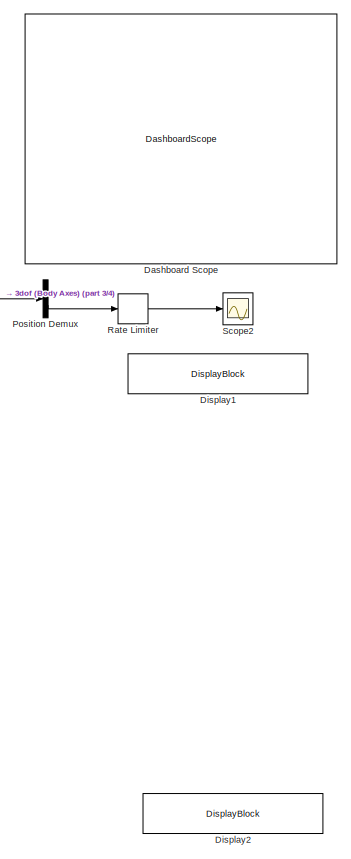
[diagram: root canvas - part 1/4, top right region]
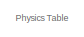
[diagram: root canvas - part 2/4, top left region]
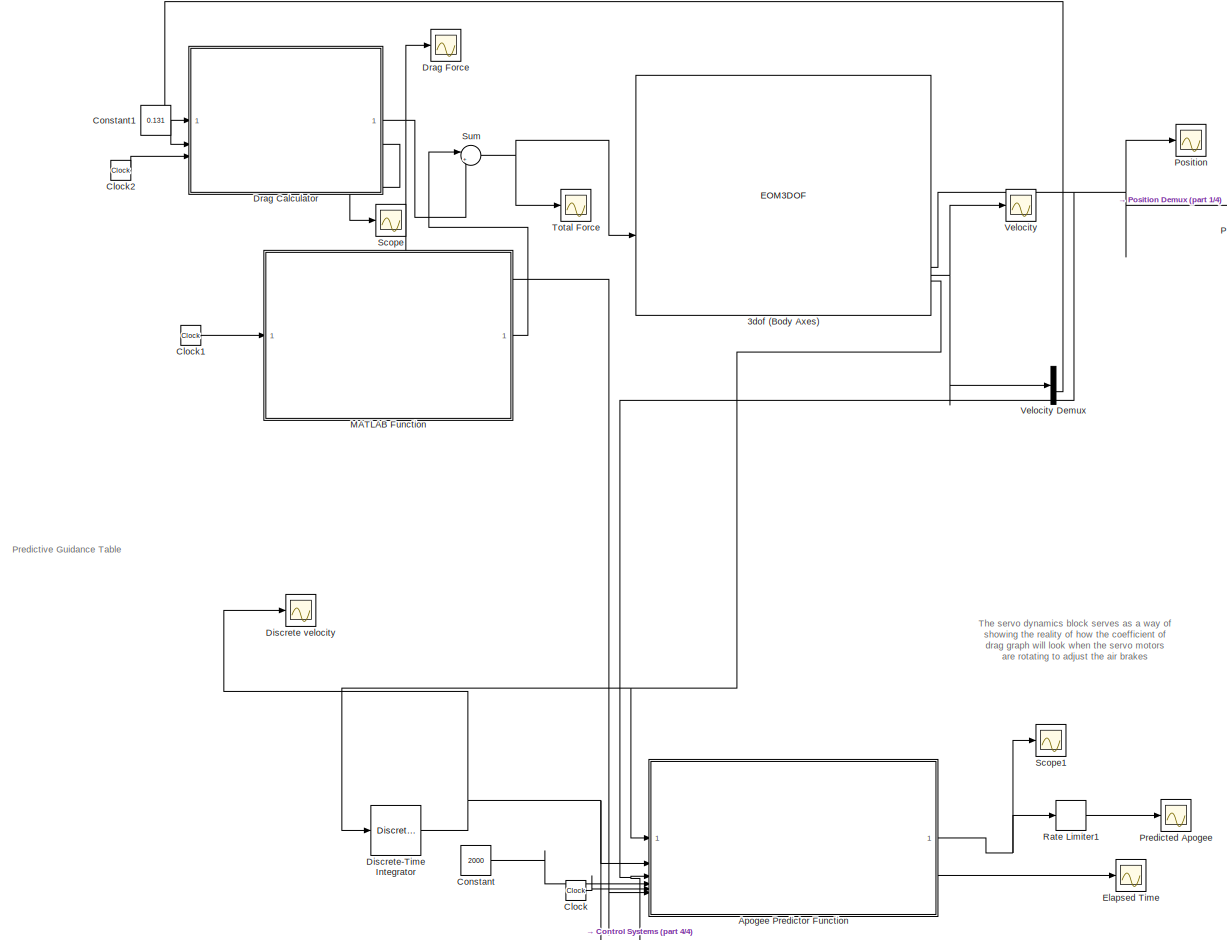
[diagram: root canvas - part 3/4, full width, middle band]
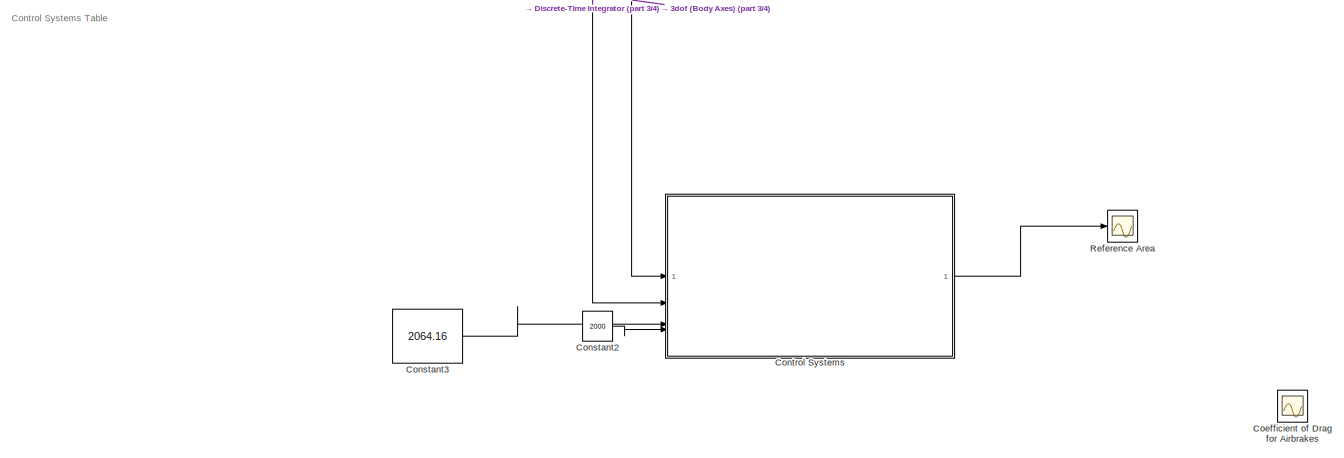
[diagram: root canvas - part 4/4, full width, bottom band]
MODEL slx_b58cb92ddd48
KIND model
CONFIG AbsTol = auto
CONFIG EnableMultiTasking = off
CONFIG FixedStep = 0.001
CONFIG MaxStep = auto
CONFIG MinStep = auto
CONFIG RelTol = 1e-3
CONFIG SampleTimeConstraint = Unconstrained
CONFIG SolverName = FixedStepAuto
CONFIG StartTime = 0.0
CONFIG StopTime = 57
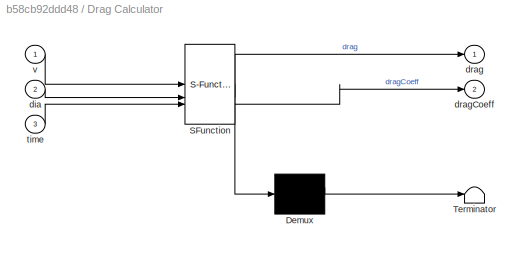
BLOCK [SubSystem]  Drag Calculator
  ErrorFcn = Stateflow.Translate.translate
  PermitHierarchicalResolution = ExplicitOnly
  SFBlockType = MATLAB Function
  TreatAsAtomicUnit = on
BLOCK [Demux]  Drag Calculator/ Demux 
  Outputs = 1
BLOCK [S-Function]  Drag Calculator/ SFunction 
  EnableBusSupport = off
  FunctionName = sf_sfun
  PortCounts = [3 3]
  SFcnIsStateOwnerBlock = off
  SFunctionDeploymentMode = off
  Tag = Stateflow S-Function 2
BLOCK [Terminator]  Drag Calculator/ Terminator 
BLOCK [Inport]  Drag Calculator/dia
  Port = 2
BLOCK [Outport]  Drag Calculator/drag
BLOCK [Outport]  Drag Calculator/dragCoeff
  Port = 2
BLOCK [Inport]  Drag Calculator/time
  Port = 3
BLOCK [Inport]  Drag Calculator/v
BLOCK [EOM3DOF] 3dof (Body Axes)
  g = -9.81
  mass = 13.576
  v_ini = 0
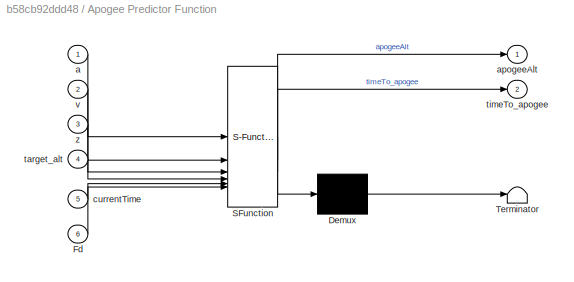
BLOCK [SubSystem] Apogee Predictor Function 
  ErrorFcn = Stateflow.Translate.translate
  PermitHierarchicalResolution = ExplicitOnly
  SFBlockType = MATLAB Function
  TreatAsAtomicUnit = on
BLOCK [Demux] Apogee Predictor Function / Demux 
  Outputs = 1
BLOCK [S-Function] Apogee Predictor Function / SFunction 
  EnableBusSupport = off
  FunctionName = sf_sfun
  PortCounts = [6 3]
  SFcnIsStateOwnerBlock = off
  SFunctionDeploymentMode = off
  Tag = Stateflow S-Function 1
BLOCK [Terminator] Apogee Predictor Function / Terminator 
BLOCK [Inport] Apogee Predictor Function /Fd
  Port = 6
BLOCK [Inport] Apogee Predictor Function /a
BLOCK [Outport] Apogee Predictor Function /apogeeAlt
BLOCK [Inport] Apogee Predictor Function /currentTime
  Port = 5
BLOCK [Inport] Apogee Predictor Function /target_alt
  Port = 4
BLOCK [Outport] Apogee Predictor Function /timeTo_apogee
  Port = 2
BLOCK [Inport] Apogee Predictor Function /v
  Port = 2
BLOCK [Inport] Apogee Predictor Function /z
  Port = 3
BLOCK [Clock] Clock
  DisplayTime = on
BLOCK [Clock] Clock1
BLOCK [Clock] Clock2
BLOCK [Scope] Coefficient of Drag for Airbrakes
  ActiveDisplayYMaximum = 1
  ActiveDisplayYMinimum = -1
  DataLoggingVariableName = ScopeData7
  Floating = off
  GraphicalSettings = {"Style":{"BackgroundColor":[0.12941176470588237,0.12941176470588237,0.12941176470588237],"AxesColor":[0.07058823529411765,0.07058823529411765,0.07058823529411765],"LabelsColor":[0.8509803921568627,0.8509803921568627,0.8509803921568627],"PreserveColors":false,"Visible":[true],"LineStyle":["-"],"LineWidth":[1.5],"BarWidth":[0.9],"LineColor":["auto"],"LineFaceAlpha":[1],"LineEdgeAlpha":[1],"Marker":...<+2006ch>
  MultipleDisplayCache = [{"MaxYLimMag":1,"MaxYLimReal":1,"MinYLimMag":0,"MinYLimReal":-1,"PlotAsMagnitudePhase":false,"ShowGrid":true,"ShowLegend":false,"Title":"%<SignalLabel>","YLabel":""}]
  NumInputPorts = 1
  ScopeFrameLocation = window
  WasSavedAsWebScope = on
  WindowPosition = [769.000000,356.000000,560.000000,420.000000,]
BLOCK [Constant] Constant
  Value = 2000
BLOCK [Constant] Constant1
  Value = 0.131
BLOCK [Constant] Constant2
  Value = 2000
BLOCK [Constant] Constant3
  Value = 2064.16
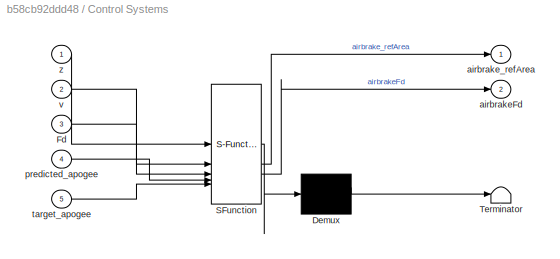
BLOCK [SubSystem] Control Systems
  ErrorFcn = Stateflow.Translate.translate
  PermitHierarchicalResolution = ExplicitOnly
  SFBlockType = MATLAB Function
  TreatAsAtomicUnit = on
BLOCK [Demux] Control Systems/ Demux 
  Outputs = 1
BLOCK [S-Function] Control Systems/ SFunction 
  EnableBusSupport = off
  FunctionName = sf_sfun
  PortCounts = [5 3]
  SFcnIsStateOwnerBlock = off
  SFunctionDeploymentMode = off
  Tag = Stateflow S-Function 4
BLOCK [Terminator] Control Systems/ Terminator 
BLOCK [Inport] Control Systems/Fd
  Port = 3
BLOCK [Outport] Control Systems/airbrakeFd
  Port = 2
BLOCK [Outport] Control Systems/airbrake_refArea
BLOCK [Inport] Control Systems/predicted_apogee
  Port = 4
BLOCK [Inport] Control Systems/target_apogee
  Port = 5
BLOCK [Inport] Control Systems/v
  Port = 2
BLOCK [Inport] Control Systems/z
BLOCK [DashboardScope] Dashboard Scope
BLOCK [Scope] Discrete velocity
  ActiveDisplayYMaximum = 312.46696240331539
  ActiveDisplayYMinimum = 291.97809991051849
  DataLoggingVariableName = ScopeData8
  Floating = off
  GraphicalSettings = {"AxesScalingProperties":{"AlignXAxis":"Center","AlignYAxis":"Center","AutoScaleXAxisLimits":false,"AxesScaling":"Manual","AxesScalingNumUpdates":10,"ExpandOnly":true,"ScaleAxesLimitsAtStop":false,"XAxisDataRange":100,"YAxisDataRange":80},"DisplayProperties":{"ColorOrder":["auto","auto","auto","auto","auto","auto","auto","auto","auto","auto","auto","auto","auto","auto","auto","auto","auto","auto",...<+2161ch>
  MultipleDisplayCache = [{"MaxYLimMag":1,"MaxYLimReal":312.46696240331539,"MinYLimMag":0,"MinYLimReal":291.97809991051849,"PlotAsMagnitudePhase":false,"ShowGrid":true,"ShowLegend":false,"Title":"%<SignalLabel>","YLabel":""}]
  NumInputPorts = 1
  ScopeFrameLocation = window
  WasSavedAsWebScope = on
  WindowPosition = [476.000000,281.000000,560.000000,420.000000,]
BLOCK [DiscreteIntegrator] Discrete-Time Integrator
  ICPrevOutput = DiscIntNeverNeededParam
  ICPrevScaledInput = DiscIntNeverNeededParam
  InitialConditionSetting = Auto
  IntegratorMethod = Integration: Backward Euler
  SampleTime = -1
BLOCK [DisplayBlock] Display1
  Format = bank
  GridColor = [0.502, 0.502, 0.502]
  LabelPosition = Hide
  Transparency = 1
BLOCK [DisplayBlock] Display2
  Format = bank
  GridColor = [0.502, 0.502, 0.502]
  LabelPosition = Hide
  Transparency = 1
BLOCK [Scope] Drag Force
  ActiveDisplayYMaximum = 1
  ActiveDisplayYMinimum = -1
  DataLoggingVariableName = ScopeData3
  Floating = off
  GraphicalSettings = {"Style":{"BackgroundColor":[0.12941176470588237,0.12941176470588237,0.12941176470588237],"AxesColor":[0.07058823529411765,0.07058823529411765,0.07058823529411765],"LabelsColor":[0.8509803921568627,0.8509803921568627,0.8509803921568627],"PreserveColors":false,"Visible":[true],"LineStyle":["-"],"LineWidth":[1.5],"BarWidth":[0.9],"LineColor":["auto"],"LineFaceAlpha":[1],"LineEdgeAlpha":[1],"Marker":...<+1924ch>
  MultipleDisplayCache = [{"MaxYLimMag":1,"MaxYLimReal":1,"MinYLimMag":0,"MinYLimReal":-1,"PlotAsMagnitudePhase":false,"ShowGrid":true,"ShowLegend":false,"Title":"%<SignalLabel>","YLabel":""}]
  NumInputPorts = 1
  ScopeFrameLocation = window
  WasSavedAsWebScope = on
  WindowPosition = [476.000000,281.000000,560.000000,420.000000,]
BLOCK [Scope] Elapsed Time
  ActiveDisplayYMaximum = 13.087344302359135
  ActiveDisplayYMinimum = 4.5521033385037128
  DataLoggingVariableName = ScopeData6
  Floating = off
  GraphicalSettings = {"AxesScalingProperties":{"AlignXAxis":"Center","AlignYAxis":"Center","AutoScaleXAxisLimits":false,"AxesScaling":"Manual","AxesScalingNumUpdates":10,"ExpandOnly":true,"ScaleAxesLimitsAtStop":false,"XAxisDataRange":100,"YAxisDataRange":80},"DisplayProperties":{"ColorOrder":["auto","auto","auto","auto","auto","auto","auto","auto","auto","auto","auto","auto","auto","auto","auto","auto","auto","auto",...<+1978ch>
  MultipleDisplayCache = [{"MaxYLimMag":21.657500000000002,"MaxYLimReal":13.087344302359135,"MinYLimMag":5.1824999999999948,"MinYLimReal":4.5521033385037128,"PlotAsMagnitudePhase":false,"ShowGrid":true,"ShowLegend":false,"Title":"%<SignalLabel>","YLabel":""}]
  NumInputPorts = 1
  ScopeFrameLocation = window
  WasSavedAsWebScope = on
  WindowPosition = [432.000000,281.000000,604.000000,420.000000,]
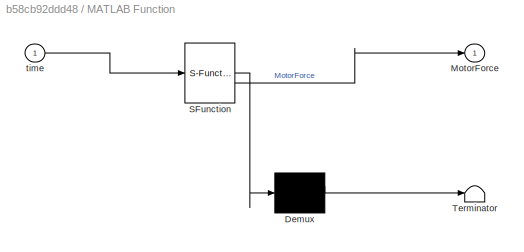
BLOCK [SubSystem] MATLAB Function
  ErrorFcn = Stateflow.Translate.translate
  PermitHierarchicalResolution = ExplicitOnly
  SFBlockType = MATLAB Function
  TreatAsAtomicUnit = on
BLOCK [Demux] MATLAB Function/ Demux 
  Outputs = 1
BLOCK [S-Function] MATLAB Function/ SFunction 
  EnableBusSupport = off
  FunctionName = sf_sfun
  PortCounts = [1 2]
  SFcnIsStateOwnerBlock = off
  SFunctionDeploymentMode = off
  Tag = Stateflow S-Function 3
BLOCK [Terminator] MATLAB Function/ Terminator 
BLOCK [Outport] MATLAB Function/MotorForce
BLOCK [Inport] MATLAB Function/time
BLOCK [Scope] Position
  ActiveDisplayYMaximum = 2260.8480304749323
  ActiveDisplayYMinimum = -251.20533671943687
  DataLoggingVariableName = ScopeData1
  Floating = off
  GraphicalSettings = {"Style":{"BackgroundColor":[0.12941176470588237,0.12941176470588237,0.12941176470588237],"AxesColor":[0.07058823529411765,0.07058823529411765,0.07058823529411765],"LabelsColor":[0.8509803921568627,0.8509803921568627,0.8509803921568627],"PreserveColors":false,"Visible":[true,true],"LineStyle":["-","-"],"LineWidth":[1.5,1.5],"BarWidth":[0.9,0.9],"LineColor":["auto","auto"],"LineFaceAlpha":[1,1],"Li...<+2166ch>
  MultipleDisplayCache = [{"MaxYLimMag":2260.8480304749323,"MaxYLimReal":2260.8480304749323,"MinYLimMag":0,"MinYLimReal":-251.20533671943687,"PlotAsMagnitudePhase":false,"ShowGrid":true,"ShowLegend":false,"Title":"%<SignalLabel>","YLabel":""}]
  NumInputPorts = 1
  ScopeFrameLocation = window
  WasSavedAsWebScope = on
  WindowPosition = [417.000000,268.000000,755.000000,347.000000,]
BLOCK [Demux] Position Demux
  Outputs = 2
BLOCK [Scope] Predicted Apogee 
  ActiveDisplayYMaximum = 2292.7929489685152
  ActiveDisplayYMinimum = -254.84305290405223
  DataLoggingVariableName = ScopeData9
  Floating = off
  GraphicalSettings = {"Style":{"BackgroundColor":[0.12941176470588237,0.12941176470588237,0.12941176470588237],"AxesColor":[0.07058823529411765,0.07058823529411765,0.07058823529411765],"LabelsColor":[0.8509803921568627,0.8509803921568627,0.8509803921568627],"PreserveColors":false,"Visible":[true],"LineStyle":["-"],"LineWidth":[1.5],"BarWidth":[0.9],"LineColor":["auto"],"LineFaceAlpha":[1],"LineEdgeAlpha":[1],"Marker":...<+2137ch>
  MultipleDisplayCache = [{"MaxYLimMag":2292.7929489685152,"MaxYLimReal":2292.7929489685152,"MinYLimMag":0,"MinYLimReal":-254.84305290405223,"PlotAsMagnitudePhase":false,"ShowGrid":true,"ShowLegend":false,"Title":"%<SignalLabel>","YLabel":""}]
  NumInputPorts = 1
  ScopeFrameLocation = container
  WasSavedAsWebScope = on
  WindowPosition = [152.000000,74.000000,1280.000000,768.000000,]
BLOCK [RateLimiter] Rate Limiter
  FallingSlewLimit = 0
  RisingSlewLimit = 9999999999
  SampleTimeMode = inherited
BLOCK [RateLimiter] Rate Limiter1
  FallingSlewLimit = 0
  RisingSlewLimit = 999999999
  SampleTimeMode = inherited
BLOCK [Scope] Reference Area
  ActiveDisplayYMaximum = 0.5298853579545455
  ActiveDisplayYMinimum = -0.095738392045454535
  ContainerLayout = {"WindowBounds":[116,107,1280,768]}
  DataLoggingVariableName = ScopeData11
  Floating = off
  GraphicalSettings = {"Style":{"BackgroundColor":[0.12941176470588237,0.12941176470588237,0.12941176470588237],"AxesColor":[0.07058823529411765,0.07058823529411765,0.07058823529411765],"LabelsColor":[0.8509803921568627,0.8509803921568627,0.8509803921568627],"PreserveColors":false,"Visible":[true],"LineStyle":["-"],"LineWidth":[1.5],"BarWidth":[0.9],"LineColor":["auto"],"LineFaceAlpha":[1],"LineEdgeAlpha":[1],"Marker":...<+2037ch>
  MultipleDisplayCache = [{"MaxYLimMag":0.563062375,"MaxYLimReal":0.5298853579545455,"MinYLimMag":0,"MinYLimReal":-0.095738392045454535,"PlotAsMagnitudePhase":false,"ShowGrid":true,"ShowLegend":false,"Title":"%<SignalLabel>","YLabel":""}]
  NumInputPorts = 1
  ScopeFrameLocation = container
  WasSavedAsWebScope = on
  WindowPosition = [116.000000,107.000000,1280.000000,768.000000,]
BLOCK [Scope] Scope
  ActiveDisplayYMaximum = 1
  ActiveDisplayYMinimum = -1
  DataLoggingVariableName = ScopeData5
  Floating = off
  GraphicalSettings = {"Style":{"BackgroundColor":[0.12941176470588237,0.12941176470588237,0.12941176470588237],"AxesColor":[0.07058823529411765,0.07058823529411765,0.07058823529411765],"LabelsColor":[0.8509803921568627,0.8509803921568627,0.8509803921568627],"PreserveColors":false,"Visible":[true],"LineStyle":["-"],"LineWidth":[1.5],"BarWidth":[0.9],"LineColor":["auto"],"LineFaceAlpha":[1],"LineEdgeAlpha":[1],"Marker":...<+1940ch>
  MultipleDisplayCache = [{"MaxYLimMag":1,"MaxYLimReal":1,"MinYLimMag":0,"MinYLimReal":-1,"PlotAsMagnitudePhase":false,"ShowGrid":true,"ShowLegend":false,"Title":"%<SignalLabel>","YLabel":""}]
  NumInputPorts = 1
  ScopeFrameLocation = window
  WasSavedAsWebScope = on
  WindowPosition = [2130.000000,375.000000,560.000000,420.000000,]
BLOCK [Scope] Scope1
  ActiveDisplayYMaximum = 2636.6963947761769
  ActiveDisplayYMinimum = -3088.7086594080656
  DataLoggingVariableName = ScopeData4
  Floating = off
  GraphicalSettings = {"Style":{"BackgroundColor":[0.12941176470588237,0.12941176470588237,0.12941176470588237],"AxesColor":[0.07058823529411765,0.07058823529411765,0.07058823529411765],"LabelsColor":[0.8509803921568627,0.8509803921568627,0.8509803921568627],"PreserveColors":false,"Visible":[true],"LineStyle":["-"],"LineWidth":[1.5],"BarWidth":[0.9],"LineColor":["auto"],"LineFaceAlpha":[1],"LineEdgeAlpha":[1],"Marker":...<+2055ch>
  MultipleDisplayCache = [{"MaxYLimMag":3088.7086594080656,"MaxYLimReal":2636.6963947761769,"MinYLimMag":0,"MinYLimReal":-3088.7086594080656,"PlotAsMagnitudePhase":false,"ShowGrid":true,"ShowLegend":false,"Title":"%<SignalLabel>","YLabel":""}]
  NumInputPorts = 1
  ScopeFrameLocation = window
  WasSavedAsWebScope = on
  WindowPosition = [476.000000,281.000000,560.000000,420.000000,]
BLOCK [Scope] Scope2
  DataLoggingVariableName = ScopeData10
  Floating = off
  GraphicalSettings = {"GraphicalSettings":{"LegacySettings":true,"Style":{"Style":{"PlotType":"Auto"}}}}
  NumInputPorts = 1
  WasSavedAsWebScope = on
BLOCK [Sum] Sum
  Inputs = |++
BLOCK [Scope] Total Force
  ActiveDisplayYMaximum = 1
  ActiveDisplayYMinimum = -1
  DataLoggingVariableName = ScopeData2
  Floating = off
  GraphicalSettings = {"Style":{"BackgroundColor":[0.12941176470588237,0.12941176470588237,0.12941176470588237],"AxesColor":[0.07058823529411765,0.07058823529411765,0.07058823529411765],"LabelsColor":[0.8509803921568627,0.8509803921568627,0.8509803921568627],"PreserveColors":false,"Visible":[true],"LineStyle":["-"],"LineWidth":[1.5],"BarWidth":[0.9],"LineColor":["auto"],"LineFaceAlpha":[1],"LineEdgeAlpha":[1],"Marker":...<+1888ch>
  MultipleDisplayCache = [{"MaxYLimMag":1,"MaxYLimReal":1,"MinYLimMag":0,"MinYLimReal":-1,"PlotAsMagnitudePhase":false,"ShowGrid":true,"ShowLegend":false,"Title":"%<SignalLabel>","YLabel":""}]
  NumInputPorts = 1
  ScopeFrameLocation = window
  WasSavedAsWebScope = on
  WindowPosition = [953.000000,134.000000,560.000000,420.000000,]
BLOCK [Scope] Velocity
  ActiveDisplayYMaximum = 1
  ActiveDisplayYMinimum = -1
  Floating = off
  GraphicalSettings = {"Style":{"BackgroundColor":[0.12941176470588237,0.12941176470588237,0.12941176470588237],"AxesColor":[0.07058823529411765,0.07058823529411765,0.07058823529411765],"LabelsColor":[0.8509803921568627,0.8509803921568627,0.8509803921568627],"PreserveColors":false,"Visible":[true,true],"LineStyle":["-","-"],"LineWidth":[1.5,1.5],"BarWidth":[0.9,0.9],"LineColor":["auto","auto"],"LineFaceAlpha":[1,1],"Li...<+2061ch>
  MultipleDisplayCache = [{"MaxYLimMag":1,"MaxYLimReal":1,"MinYLimMag":0,"MinYLimReal":-1,"PlotAsMagnitudePhase":false,"ShowGrid":true,"ShowLegend":true,"Title":"%<SignalLabel>","YLabel":""}]
  NumInputPorts = 1
  ScopeFrameLocation = window
  ShowLegend = on
  WasSavedAsWebScope = on
  WindowPosition = [476.000000,281.000000,560.000000,420.000000,]
BLOCK [Demux] Velocity Demux
  Outputs = 2
ANNOTATION (root): The servo dynamics block serves as a way of showing the reality of how the coefficient of drag graph will look when the servo motors are rotating to adjust the air brakes
ANNOTATION (root): Control Systems Table
ANNOTATION (root): Physics Table
ANNOTATION (root): Predictive Guidance Table
NET  Drag Calculator:1 -> Apogee Predictor Function :6, Drag Force:1, Sum:2
LINE  Drag Calculator:2 -> Scope:1
NET 3dof (Body Axes):4 -> Apogee Predictor Function :3, Control Systems:1, Position Demux:1, Position:1
NET 3dof (Body Axes):5 -> Velocity Demux:1, Velocity:1
NET 3dof (Body Axes):6 -> Apogee Predictor Function :1, Discrete-Time Integrator:1
NET Apogee Predictor Function :1 -> Rate Limiter1:1, Scope1:1
LINE Apogee Predictor Function :2 -> Elapsed Time:1
LINE Clock1:1 -> MATLAB Function:1
LINE Clock2:1 ->  Drag Calculator:3
LINE Clock:1 -> Apogee Predictor Function :5
LINE Constant1:1 ->  Drag Calculator:2
LINE Constant2:1 -> Control Systems:5
LINE Constant3:1 -> Control Systems:4
LINE Constant:1 -> Apogee Predictor Function :4
LINE Control Systems:1 -> Reference Area:1
NET Discrete-Time Integrator:1 -> Apogee Predictor Function :2, Control Systems:2, Discrete velocity:1
LINE MATLAB Function:1 -> Sum:1
LINE Position Demux:2 -> Rate Limiter:1
LINE Rate Limiter1:1 -> Predicted Apogee :1
LINE Rate Limiter:1 -> Scope2:1
NET Sum:1 -> 3dof (Body Axes):2, Total Force:1
LINE Velocity Demux:2 ->  Drag Calculator:1
note: NET lines group one-source signal fan-out (src -> all destinations, sorted); 1:1 wires keep LINE
CHART Apogee Predictor Function  states=1 transitions=1
  STATE_LABEL 'eML_blk_kernel()'
  STATE_LABEL 'SCRIPT:\nfunction [apogeeAlt, timeTo_apogee] = apogeePredict(a, v, z, target_alt, currentTime, Fd)\n\n% V is the velocity vector, with 2 components, U  being the x-velocity, and w being the z-velocity\n% a is acceleration\n% v is velocity\n% z is the position in the z-axis\n\n\ncurrentAlt = z(2);\ncurrentVelocity = v(2);\ncurrentAcceleration = a(2);\n\n\nm = 13.576; % in kg\nv_sim = currentVelocity;\nalt_sim = cu...<+481ch>'
CHART  Drag Calculator states=1 transitions=1
  STATE_LABEL 'eML_blk_kernel()'
  STATE_LABEL 'SCRIPT:\nfunction [drag, dragCoeff]= computeDrag(v, dia, time)\n\nA = pi * (dia/2)^2;\nrho = 1.2;\n\ny_data=[1.206\n0.555\n0.494\n0.464\n0.445\n0.431\n0.421\n0.412\n0.411\n0.411\n0.411\n0.411\n0.411\n0.411\n0.411\n0.411\n0.411\n0.412\n0.412\n0.412\n0.412\n0.412\n0.412\n0.412\n0.412\n0.413\n0.413\n0.413\n0.413\n0.413\n0.413\n0.414\n0.414\n0.414\n0.414\n0.415\n0.415\n0.415\n0.415\n0.415\n0.416\n0.416\n0.416\n0.416\n0.417\n0.417\n0.417\n0.418\n0.418\n0.4...<+3059ch>'
CHART MATLAB Function states=1 transitions=1
  STATE_LABEL 'eML_blk_kernel()'
  STATE_LABEL 'SCRIPT:\nfunction MotorForce = MotorForce_L1256WS(time)\ny_data=[0\n13.86513022\n1220.003521\n1400.239753\n1439.078899\n1469.660692\n1466.083402\n1445.399674\n1340.958951\n1231.08505\n1098.456359\n1064.1\n829.7292739\n376.0321\n55.77052487\n28.0667017\n0\n];\nx_data=[0\n0.017\n0.045\n0.19\n0.465\n0.77\n1.076\n1.381\n1.723\n2.029\n2.485\n2.71\n2.788\n2.939\n3.023\n3.041\n3.059\n];\nif (time <x_data(end))\n    MotorForce = interp1(x_data...<+68ch>'
CHART Control Systems states=1 transitions=1
  STATE_LABEL 'eML_blk_kernel()'
  STATE_LABEL 'SCRIPT:\nfunction [airbrake_refArea, airbrakeFd] = controlSystem(z, v, Fd, predicted_apogee, target_apogee)\n\nm = 13.576;\nrho = 1.225;\ng = -9.81;\nairbrake_maxArea = 0.05;\nairbrake_Cd = 0.4; % I will make a guess here, but I will change this later\n\nposition = z(2);\nacceleration = a(2);\nvelocity = v(2);\n\n\n\n\n\novershoot = predicted_apogee - target_apogee;\n\nremaining_distance = target_apogee - position;\n...<+68ch>'
CHART  states=0 transitions=0
CHART  states=0 transitions=0
CHART  states=0 transitions=0
CHART  states=0 transitions=0
